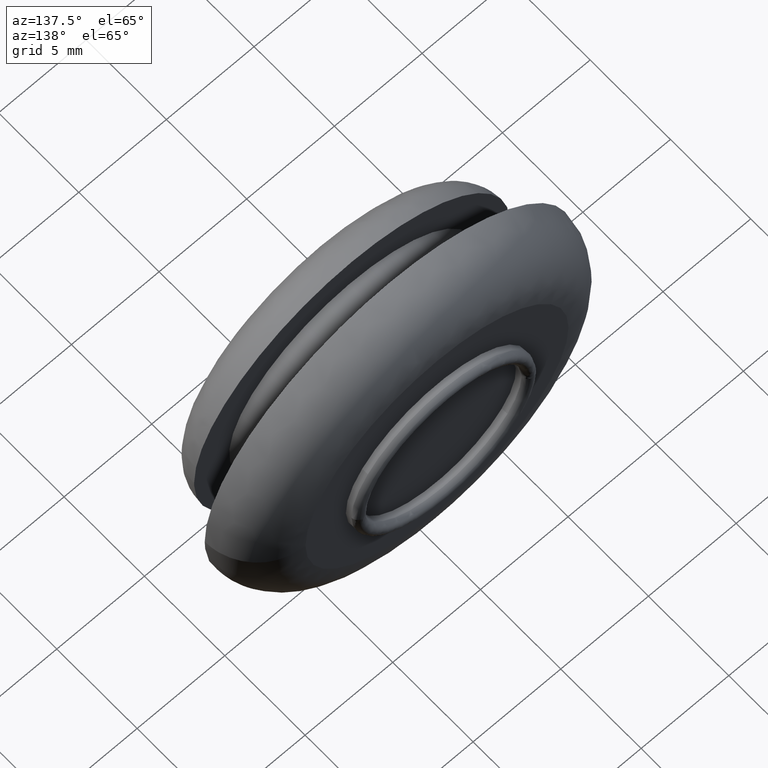
[diagram: clean part render]
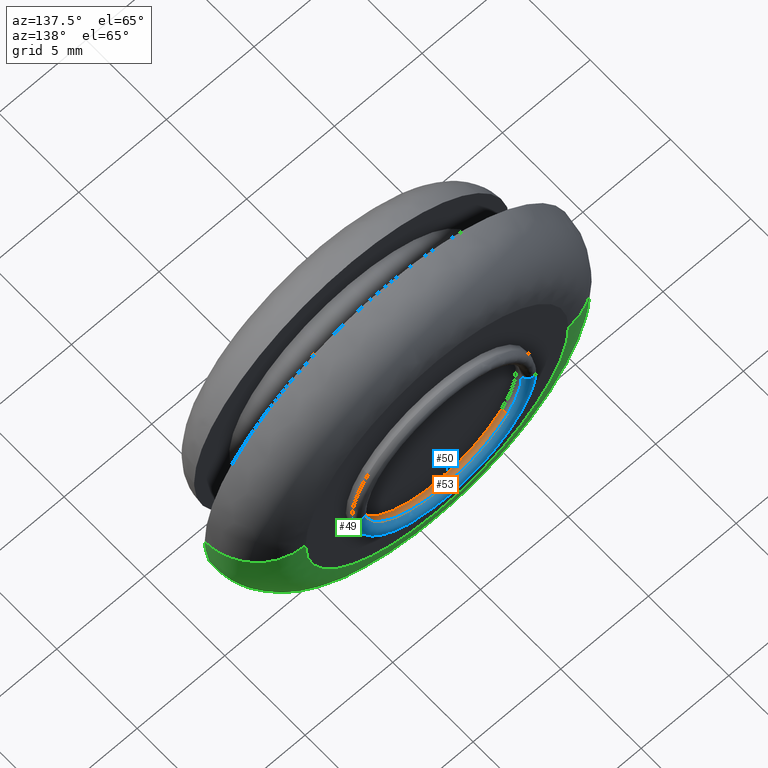
[diagram: same view with three faces highlighted in distinct colors, each labeled with its STEP entity id]
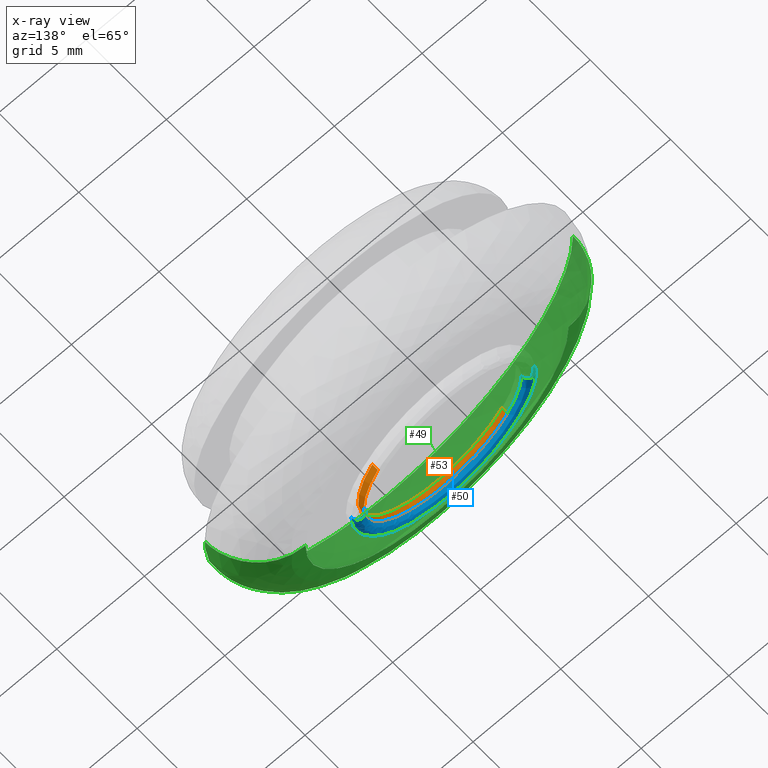
[diagram: x-ray of the same camera — body ghosted, the three highlighted faces saturated]
A machine part, auxiliary view with three faces highlighted in distinct colors.
The next image is the same camera in x-ray (body ghosted, the three faces saturated) — at least one of them is partly hidden behind the body in this view.
Their STEP definitions:

[orange] entity #53 — the highlighted cylindrical surface (partial cylindrical patch) has radius 4.5 mm, axis along (-0, 1, 0).
#53=ADVANCED_FACE('',(#195),#194,.F.);
#194=CYLINDRICAL_SURFACE('',#462,4.50000000000E+000);
#195=FACE_OUTER_BOUND('',#463,.T.);
#459=CARTESIAN_POINT('',(7.93538482269E-016,7.65875000022E+000,-5.93580583033E-016));
#460=DIRECTION('',(-5.14740884840E-016,1.00000000000E+000,3.94612630978E-016));
#461=DIRECTION('',(-8.21061160311E-001,-1.97372982156E-016,-5.70840232490E-001));
#462=AXIS2_PLACEMENT_3D('',#459,#460,#461);
#463=EDGE_LOOP('',(#584,#585,#586,#587,#588,#589,#590,#591));
#584=ORIENTED_EDGE('',*,*,#674,.F.);
#585=ORIENTED_EDGE('',*,*,#672,.F.);
#586=ORIENTED_EDGE('',*,*,#671,.F.);
#587=ORIENTED_EDGE('',*,*,#670,.F.);
#588=ORIENTED_EDGE('',*,*,#684,.F.);
#589=ORIENTED_EDGE('',*,*,#626,.T.);
#590=ORIENTED_EDGE('',*,*,#628,.T.);
#591=ORIENTED_EDGE('',*,*,#685,.T.);
#626=EDGE_CURVE('',#692,#693,#694,.T.);
#628=EDGE_CURVE('',#693,#700,#707,.T.);
#670=EDGE_CURVE('',#990,#997,#998,.T.);
#671=EDGE_CURVE('',#997,#1004,#1005,.T.);
#672=EDGE_CURVE('',#1004,#1011,#1012,.T.);
#674=EDGE_CURVE('',#1011,#1024,#1025,.T.);
#684=EDGE_CURVE('',#692,#990,#1092,.T.);
#685=EDGE_CURVE('',#700,#1024,#1098,.T.);
#692=VERTEX_POINT('',#1140);
#693=VERTEX_POINT('',#1141);
#694=CIRCLE('',#1145,4.50000000000E+000);
#700=VERTEX_POINT('',#1146);
#707=CIRCLE('',#1154,4.50000000000E+000);
#990=VERTEX_POINT('',#1355);
#997=VERTEX_POINT('',#1360);
#998=CIRCLE('',#1364,4.50000000000E+000);
#1004=VERTEX_POINT('',#1365);
#1005=CIRCLE('',#1369,4.49999999999E+000);
#1011=VERTEX_POINT('',#1370);
#1012=CIRCLE('',#1374,4.50000000002E+000);
#1024=VERTEX_POINT('',#1380);
#1025=CIRCLE('',#1384,4.50000000002E+000);
#1092=(BOUNDED_CURVE() B_SPLINE_CURVE(1,(#1428,#1429),.UNSPECIFIED.,.F.,.F.) B_SPLINE_CURVE_WITH_KNOTS((2,2),(8.33332538610E-002,9.16666666064E-001),.UNSPECIFIED.) CURVE() GEOMETRIC_REPRESENTATION_ITEM() RATIONAL_B_SPLINE_CURVE((1.00000000000E+000,1.00000000000E+000)) REPRESENTATION_ITEM('') );
#1098=(BOUNDED_CURVE() B_SPLINE_CURVE(1,(#1430,#1431),.UNSPECIFIED.,.F.,.F.) B_SPLINE_CURVE_WITH_KNOTS((2,2),(8.33333333334E-002,9.16666666184E-001),.UNSPECIFIED.) CURVE() GEOMETRIC_REPRESENTATION_ITEM() RATIONAL_B_SPLINE_CURVE((7.50000000000E-001,7.50000000000E-001)) REPRESENTATION_ITEM('') );
#1140=CARTESIAN_POINT('',(-3.69477522654E+000,7.30000000000E+000,-2.56878103881E+000));
#1141=CARTESIAN_POINT('',(4.48612855376E+000,7.30000000000E+000,-3.53058917340E-001));
#1142=CARTESIAN_POINT('',(2.04281036531E-014,7.30000000000E+000,4.80504525058E-013));
#1143=DIRECTION('',(-5.88469851645E-016,-1.00000000000E+000,-5.36616381158E-016));
#1144=DIRECTION('',(9.96917456392E-001,-5.44554267985E-016,-7.84575371867E-002));
#1145=AXIS2_PLACEMENT_3D('',#1142,#1143,#1144);
#1146=CARTESIAN_POINT('',(3.69425604768E+000,7.30000000000E+000,2.56952763249E+000));
#1151=CARTESIAN_POINT('',(2.04281036531E-014,7.30000000000E+000,4.80504525058E-013));
#1152=DIRECTION('',(-5.88469851645E-016,-1.00000000000E+000,-5.36616381158E-016));
#1153=DIRECTION('',(9.96917456392E-001,-5.44554267985E-016,-7.84575371867E-002));
#1154=AXIS2_PLACEMENT_3D('',#1151,#1152,#1153);
#1355=CARTESIAN_POINT('',(-3.69477522132E+000,7.64999999643E+000,-2.56878104632E+000));
#1360=CARTESIAN_POINT('',(0.00000000000E+000,7.65000000000E+000,-4.50000000000E+000));
#1361=CARTESIAN_POINT('',(1.33226762955E-015,7.65000000033E+000,8.88178419700E-016));
#1362=DIRECTION('',(1.21338002035E-010,-1.00000000000E+000,1.34385250314E-009));
#1363=DIRECTION('',(9.97565673840E-001,2.73314210770E-011,-6.97332515777E-002));
#1364=AXIS2_PLACEMENT_3D('',#1361,#1362,#1363);
#1365=CARTESIAN_POINT('',(4.48612856049E+000,7.65000000000E+000,-3.53058831843E-001));
#1366=CARTESIAN_POINT('',(1.10222941885E-012,7.65000000000E+000,-7.30793203729E-012));
#1367=DIRECTION('',(-6.74879898254E-030,-1.00000000000E+000,-9.67127612564E-014));
#1368=DIRECTION('',(2.44939870855E-013,-9.67127612564E-014,1.00000000000E+000));
#1369=AXIS2_PLACEMENT_3D('',#1366,#1367,#1368);
#1370=CARTESIAN_POINT('',(4.49999999532E+000,7.65000000000E+000,2.05495713352E-004));
#1371=CARTESIAN_POINT('',(-1.25359722603E-011,7.65000000022E+000,-2.07940331620E-011));
#1372=DIRECTION('',(-4.77005420370E-011,-1.00000000000E+000,-8.75570831421E-014));
#1373=DIRECTION('',(-8.21061317145E-001,3.92150509594E-011,-5.70840006909E-001));
#1374=AXIS2_PLACEMENT_3D('',#1371,#1372,#1373);
#1380=CARTESIAN_POINT('',(3.69469279361E+000,7.65000000004E+000,2.56889960116E+000));
#1381=CARTESIAN_POINT('',(-1.25359722603E-011,7.65000000022E+000,-2.07940331620E-011));
#1382=DIRECTION('',(-4.77005420370E-011,-1.00000000000E+000,-8.75570831421E-014));
#1383=DIRECTION('',(-8.21061317145E-001,3.92150509594E-011,-5.70840006909E-001));
#1384=AXIS2_PLACEMENT_3D('',#1381,#1382,#1383);
#1428=CARTESIAN_POINT('',(-3.69477522140E+000,7.29999996662E+000,-2.56878104621E+000));
#1429=CARTESIAN_POINT('',(-3.69477522140E+000,7.64999999996E+000,-2.56878104621E+000));
#1430=CARTESIAN_POINT('',(3.69477522140E+000,7.30000000000E+000,2.56878104621E+000));
#1431=CARTESIAN_POINT('',(3.69477522140E+000,7.65000000001E+000,2.56878104621E+000));

[blue] entity #50 — the highlighted face is a freeform B-spline surface patch.
#50=ADVANCED_FACE('',(#165),#164,.T.);
#164=( BOUNDED_SURFACE() B_SPLINE_SURFACE( 2,2,((#402,#403,#404,#405,#406),(#407,#408,#409,#410,#411),(#412,#413,#414,#415,#416),(#417,#418,#419,#420,#421),(#422,#423,#424,#425,#426)), .UNSPECIFIED.,.F.,.F.,.F.) B_SPLINE_SURFACE_WITH_KNOTS((3,2,3),(3,2,3),(0.00000000000E+000,5.00000000000E-001,1.00000000000E+000),(0.00000000000E+000,5.00000000000E-001,1.00000000000E+000), .UNSPECIFIED. ) GEOMETRIC_REPRESENTATION_ITEM() RATIONAL_B_SPLINE_SURFACE(((1.00000000000E+000,7.07106778288E-001,1.00000000000E+000,7.07106778288E-001,1.00000000000E+000),(7.07106781187E-001,4.99999997950E-001,7.07106781187E-001,4.99999997950E-001,7.07106781187E-001),(1.00000000000E+000,7.07106778288E-001,1.00000000000E+000,7.07106778288E-001,1.00000000000E+000),(7.07106781187E-001,4.99999997950E-001,7.07106781187E-001,4.99999997950E-001,7.07106781187E-001),(1.00000000000E+000,7.07106778288E-001,1.00000000000E+000,7.07106778288E-001,1.00000000000E+000))) REPRESENTATION_ITEM('') SURFACE() );
#165=FACE_OUTER_BOUND('',#427,.T.);
#402=CARTESIAN_POINT('',(-4.50000000000E+000,7.64999999426E+000,-1.50116762665E-013));
#403=CARTESIAN_POINT('',(-4.49999999426E+000,7.99999999713E+000,-1.43338164052E-013));
#404=CARTESIAN_POINT('',(-4.84999999713E+000,8.00000000000E+000,-1.43381025219E-013));
#405=CARTESIAN_POINT('',(-5.20000000000E+000,8.00000000287E+000,-1.43423886387E-013));
#406=CARTESIAN_POINT('',(-5.20000000000E+000,7.65000000000E+000,-1.50202484998E-013));
#407=CARTESIAN_POINT('',(-4.50000000000E+000,7.64999999426E+000,-4.50000000000E+000));
#408=CARTESIAN_POINT('',(-4.49999999426E+000,7.99999999713E+000,-4.49999999426E+000));
#409=CARTESIAN_POINT('',(-4.84999999713E+000,8.00000000000E+000,-4.84999999713E+000));
#410=CARTESIAN_POINT('',(-5.20000000000E+000,8.00000000287E+000,-5.20000000000E+000));
#411=CARTESIAN_POINT('',(-5.20000000000E+000,7.65000000000E+000,-5.20000000000E+000));
#412=CARTESIAN_POINT('',(2.92675403400E-012,7.64999999426E+000,-4.50000000000E+000));
#413=CARTESIAN_POINT('',(2.76223050606E-012,7.99999999713E+000,-4.49999999426E+000));
#414=CARTESIAN_POINT('',(2.76225193461E-012,8.00000000000E+000,-4.84999999713E+000));
#415=CARTESIAN_POINT('',(2.76227336317E-012,8.00000000287E+000,-5.20000000000E+000));
#416=CARTESIAN_POINT('',(2.92679689111E-012,7.65000000000E+000,-5.20000000000E+000));
#417=CARTESIAN_POINT('',(4.50000000001E+000,7.64999999427E+000,-4.50000000000E+000));
#418=CARTESIAN_POINT('',(4.49999999427E+000,7.99999999713E+000,-4.49999999426E+000));
#419=CARTESIAN_POINT('',(4.84999999714E+000,8.00000000000E+000,-4.84999999713E+000));
#420=CARTESIAN_POINT('',(5.20000000001E+000,8.00000000287E+000,-5.20000000000E+000));
#421=CARTESIAN_POINT('',(5.20000000001E+000,7.65000000000E+000,-5.20000000000E+000));
#422=CARTESIAN_POINT('',(4.50000000001E+000,7.64999999427E+000,-1.49565708006E-013));
#423=CARTESIAN_POINT('',(4.49999999427E+000,7.99999999713E+000,-1.42787109394E-013));
#424=CARTESIAN_POINT('',(4.84999999714E+000,8.00000000000E+000,-1.42787110754E-013));
#425=CARTESIAN_POINT('',(5.20000000001E+000,8.00000000287E+000,-1.42787112114E-013));
#426=CARTESIAN_POINT('',(5.20000000001E+000,7.65000000000E+000,-1.49565710726E-013));
#427=EDGE_LOOP('',(#555,#556,#557,#558,#559,#560,#561,#562,#563));
#555=ORIENTED_EDGE('',*,*,#665,.F.);
#556=ORIENTED_EDGE('',*,*,#666,.F.);
#557=ORIENTED_EDGE('',*,*,#667,.F.);
#558=ORIENTED_EDGE('',*,*,#668,.F.);
#559=ORIENTED_EDGE('',*,*,#669,.T.);
#560=ORIENTED_EDGE('',*,*,#670,.T.);
#561=ORIENTED_EDGE('',*,*,#671,.T.);
#562=ORIENTED_EDGE('',*,*,#672,.T.);
#563=ORIENTED_EDGE('',*,*,#673,.T.);
#665=EDGE_CURVE('',#961,#962,#963,.T.);
#666=EDGE_CURVE('',#969,#961,#970,.T.);
#667=EDGE_CURVE('',#976,#969,#977,.T.);
#668=EDGE_CURVE('',#983,#976,#984,.T.);
#669=EDGE_CURVE('',#983,#990,#991,.T.);
#670=EDGE_CURVE('',#990,#997,#998,.T.);
#671=EDGE_CURVE('',#997,#1004,#1005,.T.);
#672=EDGE_CURVE('',#1004,#1011,#1012,.T.);
#673=EDGE_CURVE('',#1011,#962,#1018,.T.);
#961=VERTEX_POINT('',#1333);
#962=VERTEX_POINT('',#1334);
#963=CIRCLE('',#1338,5.20000000001E+000);
#969=VERTEX_POINT('',#1339);
#970=CIRCLE('',#1343,5.20000000000E+000);
#976=VERTEX_POINT('',#1344);
#977=CIRCLE('',#1348,5.20000000000E+000);
#983=VERTEX_POINT('',#1349);
#984=(BOUNDED_CURVE() B_SPLINE_CURVE(2,(#1350,#1351,#1352,#1353,#1354),.UNSPECIFIED.,.F.,.F.) B_SPLINE_CURVE_WITH_KNOTS((3,2,3),(0.00000000000E+000,5.00000000000E-001,1.00000000000E+000),.UNSPECIFIED.) CURVE() GEOMETRIC_REPRESENTATION_ITEM() RATIONAL_B_SPLINE_CURVE((1.00000000000E+000,7.07106778288E-001,1.00000000000E+000,7.07106778288E-001,1.00000000000E+000)) REPRESENTATION_ITEM('') );
#990=VERTEX_POINT('',#1355);
#991=CIRCLE('',#1359,4.50000000000E+000);
#997=VERTEX_POINT('',#1360);
#998=CIRCLE('',#1364,4.50000000000E+000);
#1004=VERTEX_POINT('',#1365);
#1005=CIRCLE('',#1369,4.49999999999E+000);
#1011=VERTEX_POINT('',#1370);
#1012=CIRCLE('',#1374,4.50000000002E+000);
#1018=(BOUNDED_CURVE() B_SPLINE_CURVE(2,(#1375,#1376,#1377,#1378,#1379),.UNSPECIFIED.,.F.,.F.) B_SPLINE_CURVE_WITH_KNOTS((3,2,3),(0.00000000000E+000,5.00000000000E-001,1.00000000000E+000),.UNSPECIFIED.) CURVE() GEOMETRIC_REPRESENTATION_ITEM() RATIONAL_B_SPLINE_CURVE((7.50000000000E-001,5.30330083716E-001,7.50000000000E-001,5.30330083716E-001,7.50000000000E-001)) REPRESENTATION_ITEM('') );
#1333=CARTESIAN_POINT('',(0.00000000000E+000,7.65000000000E+000,-5.20000000000E+000));
#1334=CARTESIAN_POINT('',(5.19999791885E+000,7.65000000000E+000,-4.65231016337E-003));
#1335=CARTESIAN_POINT('',(-8.48165981893E-012,7.65000000005E+000,-1.31779032131E-011));
#1336=DIRECTION('',(-9.57618728678E-012,-1.00000000000E+000,-7.05474047836E-014));
#1337=DIRECTION('',(-8.21061408799E-001,7.90290909635E-012,-5.70839875079E-001));
#1338=AXIS2_PLACEMENT_3D('',#1335,#1336,#1337);
#1339=CARTESIAN_POINT('',(-4.26951476746E+000,7.64999999917E+000,-2.96837390678E+000));
#1340=CARTESIAN_POINT('',(-1.77635683940E-015,7.65000000008E+000,-2.66453525910E-015));
#1341=DIRECTION('',(2.43794370255E-011,-1.00000000000E+000,2.70018500868E-010));
#1342=DIRECTION('',(9.97565673840E-001,5.49082147271E-012,-6.97332515768E-002));
#1343=AXIS2_PLACEMENT_3D('',#1340,#1341,#1342);
#1344=CARTESIAN_POINT('',(-5.20000000000E+000,7.64999999995E+000,1.24635031632E-010));
#1345=CARTESIAN_POINT('',(-1.77635683940E-015,7.65000000008E+000,-2.66453525910E-015));
#1346=DIRECTION('',(2.43794370255E-011,-1.00000000000E+000,2.70018500868E-010));
#1347=DIRECTION('',(9.97565673840E-001,5.49082147271E-012,-6.97332515768E-002));
#1348=AXIS2_PLACEMENT_3D('',#1345,#1346,#1347);
#1349=CARTESIAN_POINT('',(-4.50000000000E+000,7.64999999979E+000,-1.50141123725E-013));
#1350=CARTESIAN_POINT('',(-4.50000000000E+000,7.64999999426E+000,-1.50116762665E-013));
#1351=CARTESIAN_POINT('',(-4.49999999426E+000,7.99999999713E+000,-1.43338164052E-013));
#1352=CARTESIAN_POINT('',(-4.84999999713E+000,8.00000000000E+000,-1.43381025219E-013));
#1353=CARTESIAN_POINT('',(-5.20000000000E+000,8.00000000287E+000,-1.43423886387E-013));
#1354=CARTESIAN_POINT('',(-5.20000000000E+000,7.65000000000E+000,-1.50202484998E-013));
#1355=CARTESIAN_POINT('',(-3.69477522132E+000,7.64999999643E+000,-2.56878104632E+000));
#1356=CARTESIAN_POINT('',(1.33226762955E-015,7.65000000033E+000,8.88178419700E-016));
#1357=DIRECTION('',(1.21338002035E-010,-1.00000000000E+000,1.34385250314E-009));
#1358=DIRECTION('',(9.97565673840E-001,2.73314210770E-011,-6.97332515777E-002));
#1359=AXIS2_PLACEMENT_3D('',#1356,#1357,#1358);
#1360=CARTESIAN_POINT('',(0.00000000000E+000,7.65000000000E+000,-4.50000000000E+000));
#1361=CARTESIAN_POINT('',(1.33226762955E-015,7.65000000033E+000,8.88178419700E-016));
#1362=DIRECTION('',(1.21338002035E-010,-1.00000000000E+000,1.34385250314E-009));
#1363=DIRECTION('',(9.97565673840E-001,2.73314210770E-011,-6.97332515777E-002));
#1364=AXIS2_PLACEMENT_3D('',#1361,#1362,#1363);
#1365=CARTESIAN_POINT('',(4.48612856049E+000,7.65000000000E+000,-3.53058831843E-001));
#1366=CARTESIAN_POINT('',(1.10222941885E-012,7.65000000000E+000,-7.30793203729E-012));
#1367=DIRECTION('',(-6.74879898254E-030,-1.00000000000E+000,-9.67127612564E-014));
#1368=DIRECTION('',(2.44939870855E-013,-9.67127612564E-014,1.00000000000E+000));
#1369=AXIS2_PLACEMENT_3D('',#1366,#1367,#1368);
#1370=CARTESIAN_POINT('',(4.49999999532E+000,7.65000000000E+000,2.05495713352E-004));
#1371=CARTESIAN_POINT('',(-1.25359722603E-011,7.65000000022E+000,-2.07940331620E-011));
#1372=DIRECTION('',(-4.77005420370E-011,-1.00000000000E+000,-8.75570831421E-014));
#1373=DIRECTION('',(-8.21061317145E-001,3.92150509594E-011,-5.70840006909E-001));
#1374=AXIS2_PLACEMENT_3D('',#1371,#1372,#1373);
#1375=CARTESIAN_POINT('',(4.50000000001E+000,7.64999999427E+000,-1.48917915036E-013));
#1376=CARTESIAN_POINT('',(4.49999999427E+000,7.99999999713E+000,-1.41936358847E-013));
#1377=CARTESIAN_POINT('',(4.84999999714E+000,8.00000000000E+000,-1.41220368732E-013));
#1378=CARTESIAN_POINT('',(5.20000000001E+000,8.00000000287E+000,-1.42145704509E-013));
#1379=CARTESIAN_POINT('',(5.20000000001E+000,7.65000000000E+000,-1.48621855563E-013));

[green] entity #49 — the highlighted face is a freeform B-spline surface patch.
#49=ADVANCED_FACE('',(#155),#154,.T.);
#154=( BOUNDED_SURFACE() B_SPLINE_SURFACE( 2,2,((#376,#377,#378,#379,#380),(#381,#382,#383,#384,#385),(#386,#387,#388,#389,#390),(#391,#392,#393,#394,#395),(#396,#397,#398,#399,#400)), .UNSPECIFIED.,.F.,.F.,.F.) B_SPLINE_SURFACE_WITH_KNOTS((3,2,3),(3,2,3),(-1.57079657884E+000,-1.04711989377E+000,2.32972274600E-004),(3.14159265359E+000,4.71238898038E+000,6.28318530718E+000), .UNSPECIFIED. ) GEOMETRIC_REPRESENTATION_ITEM() RATIONAL_B_SPLINE_SURFACE(((9.32993286230E-001,6.59725879495E-001,9.32993286230E-001,6.59725879495E-001,9.32993286230E-001),(9.32993253980E-001,6.59725856691E-001,9.32993253980E-001,6.59725856691E-001,9.32993253980E-001),(1.00000000000E+000,7.07106781187E-001,1.00000000000E+000,7.07106781187E-001,1.00000000000E+000),(8.65986572461E-001,6.12344977803E-001,8.65986572461E-001,6.12344977803E-001,8.65986572461E-001),(1.00000000000E+000,7.07106781187E-001,1.00000000000E+000,7.07106781187E-001,1.00000000000E+000))) REPRESENTATION_ITEM('') SURFACE() );
#155=FACE_OUTER_BOUND('',#401,.T.);
#376=CARTESIAN_POINT('',(7.49999922610E+000,7.30000000000E+000,2.71493808492E-014));
#377=CARTESIAN_POINT('',(7.49999922610E+000,7.30000000000E+000,-7.49999922610E+000));
#378=CARTESIAN_POINT('',(-1.11845780562E-012,7.30000000000E+000,-7.49999922610E+000));
#379=CARTESIAN_POINT('',(-7.49999922610E+000,7.30000000000E+000,-7.49999922610E+000));
#380=CARTESIAN_POINT('',(-7.49999922610E+000,7.30000000000E+000,2.89862901903E-014));
#381=CARTESIAN_POINT('',(8.30397206890E+000,7.30000020740E+000,2.70509308900E-014));
#382=CARTESIAN_POINT('',(8.30397206890E+000,7.30000020740E+000,-8.30397206890E+000));
#383=CARTESIAN_POINT('',(-1.11855632075E-012,7.30000020740E+000,-8.30397206890E+000));
#384=CARTESIAN_POINT('',(-8.30397206890E+000,7.30000020739E+000,-8.30397206890E+000));
#385=CARTESIAN_POINT('',(-8.30397206890E+000,7.30000020739E+000,2.90847502815E-014));
#386=CARTESIAN_POINT('',(9.00020175538E+000,6.89795971738E+000,1.71452862776E-014));
#387=CARTESIAN_POINT('',(9.00020175538E+000,6.89795971738E+000,-9.00020175539E+000));
#388=CARTESIAN_POINT('',(-1.00212034470E-012,6.89795971738E+000,-9.00020175539E+000));
#389=CARTESIAN_POINT('',(-9.00020175539E+000,6.89795971738E+000,-9.00020175539E+000));
#390=CARTESIAN_POINT('',(-9.00020175539E+000,6.89795971738E+000,1.93496271287E-014));
#391=CARTESIAN_POINT('',(1.05004035108E+001,6.03166248737E+000,-4.19891337965E-015));
#392=CARTESIAN_POINT('',(1.05004035108E+001,6.03166248737E+000,-1.05004035108E+001));
#393=CARTESIAN_POINT('',(-7.51229785077E-013,6.03166248736E+000,-1.05004035108E+001));
#394=CARTESIAN_POINT('',(-1.05004035108E+001,6.03166248736E+000,-1.05004035108E+001));
#395=CARTESIAN_POINT('',(-1.05004035108E+001,6.03166248736E+000,-1.62714120825E-015));
#396=CARTESIAN_POINT('',(1.04999999186E+001,4.29930108318E+000,-4.65141392447E-014));
#397=CARTESIAN_POINT('',(1.04999999186E+001,4.29930108318E+000,-1.04999999186E+001));
#398=CARTESIAN_POINT('',(-2.49148730417E-013,4.29930108318E+000,-1.04999999186E+001));
#399=CARTESIAN_POINT('',(-1.04999999186E+001,4.29930108318E+000,-1.04999999186E+001));
#400=CARTESIAN_POINT('',(-1.04999999186E+001,4.29930108318E+000,-4.39424659217E-014));
#401=EDGE_LOOP('',(#548,#549,#550,#551,#552,#553,#554));
#548=ORIENTED_EDGE('',*,*,#648,.F.);
#549=ORIENTED_EDGE('',*,*,#647,.F.);
#550=ORIENTED_EDGE('',*,*,#652,.F.);
#551=ORIENTED_EDGE('',*,*,#663,.F.);
#552=ORIENTED_EDGE('',*,*,#656,.T.);
#553=ORIENTED_EDGE('',*,*,#658,.T.);
#554=ORIENTED_EDGE('',*,*,#664,.T.);
#647=EDGE_CURVE('',#839,#840,#841,.T.);
#648=EDGE_CURVE('',#840,#847,#848,.T.);
#652=EDGE_CURVE('',#868,#839,#875,.T.);
#656=EDGE_CURVE('',#902,#903,#904,.T.);
#658=EDGE_CURVE('',#903,#910,#917,.T.);
#663=EDGE_CURVE('',#902,#868,#949,.T.);
#664=EDGE_CURVE('',#910,#847,#955,.T.);
#839=VERTEX_POINT('',#1245);
#840=VERTEX_POINT('',#1246);
#841=CIRCLE('',#1250,1.05000000000E+001);
#847=VERTEX_POINT('',#1251);
#848=(BOUNDED_CURVE() B_SPLINE_CURVE(2,(#1252,#1253,#1254),.UNSPECIFIED.,.F.,.F.) B_SPLINE_CURVE_WITH_KNOTS((3,3),(0.00000000000E+000,1.00000000000E+000),.UNSPECIFIED.) CURVE() GEOMETRIC_REPRESENTATION_ITEM() RATIONAL_B_SPLINE_CURVE((1.00000000000E+000,9.99407207030E-001,1.00000000000E+000)) REPRESENTATION_ITEM('') );
#868=VERTEX_POINT('',#1264);
#875=CIRCLE('',#1272,1.05000000000E+001);
#902=VERTEX_POINT('',#1288);
#903=VERTEX_POINT('',#1289);
#904=CIRCLE('',#1293,7.50000000014E+000);
#910=VERTEX_POINT('',#1294);
#917=CIRCLE('',#1302,7.50000000014E+000);
#949=(BOUNDED_CURVE() B_SPLINE_CURVE(2,(#1323,#1324,#1325,#1326,#1327),.UNSPECIFIED.,.F.,.F.) B_SPLINE_CURVE_WITH_KNOTS((3,2,3),(-1.57079631639E+000,-1.04711989377E+000,-1.04413764058E-005),.UNSPECIFIED.) CURVE() GEOMETRIC_REPRESENTATION_ITEM() RATIONAL_B_SPLINE_CURVE((9.32993286230E-001,9.32993287562E-001,1.00000000000E+000,8.66017718313E-001,9.99937722773E-001)) REPRESENTATION_ITEM('') );
#955=(BOUNDED_CURVE() B_SPLINE_CURVE(2,(#1328,#1329,#1330,#1331,#1332),.UNSPECIFIED.,.F.,.F.) B_SPLINE_CURVE_WITH_KNOTS((3,2,3),(-1.57079657884E+000,-1.04711989377E+000,2.32972274600E-004),.UNSPECIFIED.) CURVE() GEOMETRIC_REPRESENTATION_ITEM() RATIONAL_B_SPLINE_CURVE((9.32993286230E-001,9.32993253980E-001,1.00000000000E+000,8.65986572461E-001,1.00000000000E+000)) REPRESENTATION_ITEM('') );
#1245=CARTESIAN_POINT('',(0.00000000000E+000,4.30000000000E+000,-1.05000000000E+001));
#1246=CARTESIAN_POINT('',(1.04744398257E+001,4.29999838657E+000,-7.32195559448E-001));
#1247=CARTESIAN_POINT('',(-3.65929508916E-013,4.29999919329E+000,-1.20348175869E-012));
#1248=DIRECTION('',(-8.23881084626E-008,-1.00000000000E+000,-7.68299732406E-008));
#1249=DIRECTION('',(-3.48504294206E-014,-7.68299732406E-008,1.00000000000E+000));
#1250=AXIS2_PLACEMENT_3D('',#1247,#1248,#1249);
#1251=CARTESIAN_POINT('',(1.04999999186E+001,4.29930108318E+000,-4.65141392447E-014));
#1252=CARTESIAN_POINT('',(1.04744398257E+001,4.29999838657E+000,-7.32195559448E-001));
#1253=CARTESIAN_POINT('',(1.04996622463E+001,4.29999841249E+000,-3.71375662444E-001));
#1254=CARTESIAN_POINT('',(1.04999999186E+001,4.29930108318E+000,-4.65141392447E-014));
#1264=CARTESIAN_POINT('',(-1.05000000000E+001,4.29999842985E+000,-2.55370822547E-008));
#1269=CARTESIAN_POINT('',(5.08038056068E-013,4.29999920999E+000,-2.66897615120E-012));
#1270=DIRECTION('',(7.42994944509E-008,-1.00000000000E+000,-7.52390202351E-008));
#1271=DIRECTION('',(9.99921052653E-001,7.52390346428E-008,-1.25653675038E-002));
#1272=AXIS2_PLACEMENT_3D('',#1269,#1270,#1271);
#1288=CARTESIAN_POINT('',(-7.50000000020E+000,7.30000000000E+000,-1.13696944212E-007));
#1289=CARTESIAN_POINT('',(-3.21964677141E-015,7.30000000000E+000,-7.50000000027E+000));
#1290=CARTESIAN_POINT('',(-6.02256022830E-011,7.30000000000E+000,-1.37492683905E-010));
#1291=DIRECTION('',(6.05720519169E-016,-1.00000000000E+000,6.96686584546E-015));
#1292=DIRECTION('',(8.03000721472E-012,-6.96686584545E-015,-1.00000000000E+000));
#1293=AXIS2_PLACEMENT_3D('',#1290,#1291,#1292);
#1294=CARTESIAN_POINT('',(7.50000000008E+000,7.30000000000E+000,3.77558069178E-008));
#1299=CARTESIAN_POINT('',(-6.02256022830E-011,7.30000000000E+000,-1.37492683905E-010));
#1300=DIRECTION('',(6.05720519169E-016,-1.00000000000E+000,6.96686584546E-015));
#1301=DIRECTION('',(8.03000721472E-012,-6.96686584545E-015,-1.00000000000E+000));
#1302=AXIS2_PLACEMENT_3D('',#1299,#1300,#1301);
#1323=CARTESIAN_POINT('',(-7.50000003195E+000,7.30000000000E+000,2.89862902890E-014));
#1324=CARTESIAN_POINT('',(-8.30397244289E+000,7.29999999143E+000,2.90847450522E-014));
#1325=CARTESIAN_POINT('',(-9.00020175539E+000,6.89795971738E+000,1.93496271287E-014));
#1326=CARTESIAN_POINT('',(-1.05000009098E+001,6.03189497082E+000,-1.62151178750E-015));
#1327=CARTESIAN_POINT('',(-1.05000000000E+001,4.29999842400E+000,-4.39254324169E-014));
#1328=CARTESIAN_POINT('',(7.49999922610E+000,7.30000000000E+000,2.71493808492E-014));
#1329=CARTESIAN_POINT('',(8.30397206890E+000,7.30000020740E+000,2.70509308900E-014));
#1330=CARTESIAN_POINT('',(9.00020175538E+000,6.89795971738E+000,1.71452862776E-014));
#1331=CARTESIAN_POINT('',(1.05004035108E+001,6.03166248737E+000,-4.19891337965E-015));
#1332=CARTESIAN_POINT('',(1.04999999186E+001,4.29930108318E+000,-4.65141392447E-014));